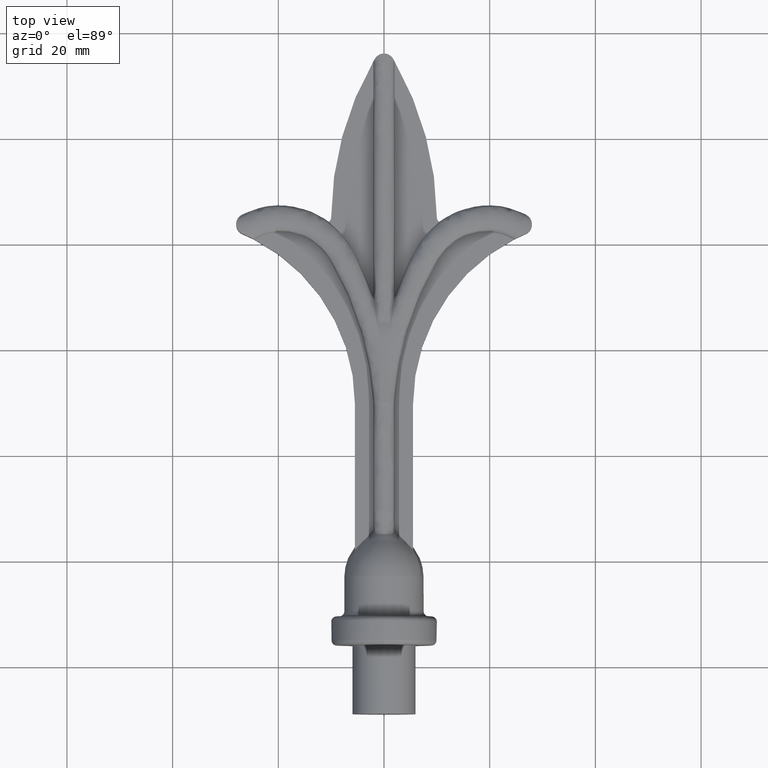
[diagram: clean part render]
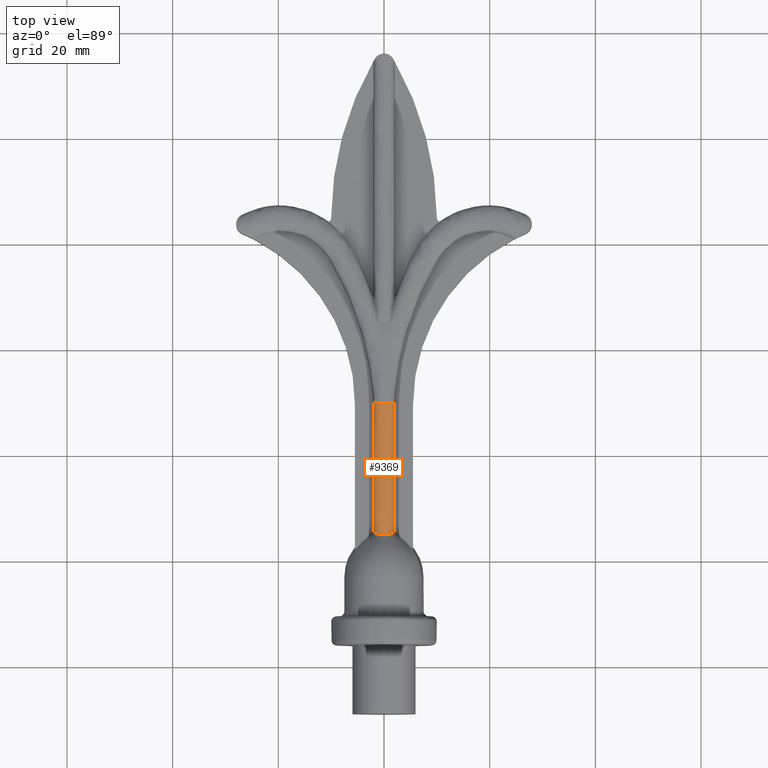
[diagram: same view with one face highlighted and labeled with its STEP entity id]
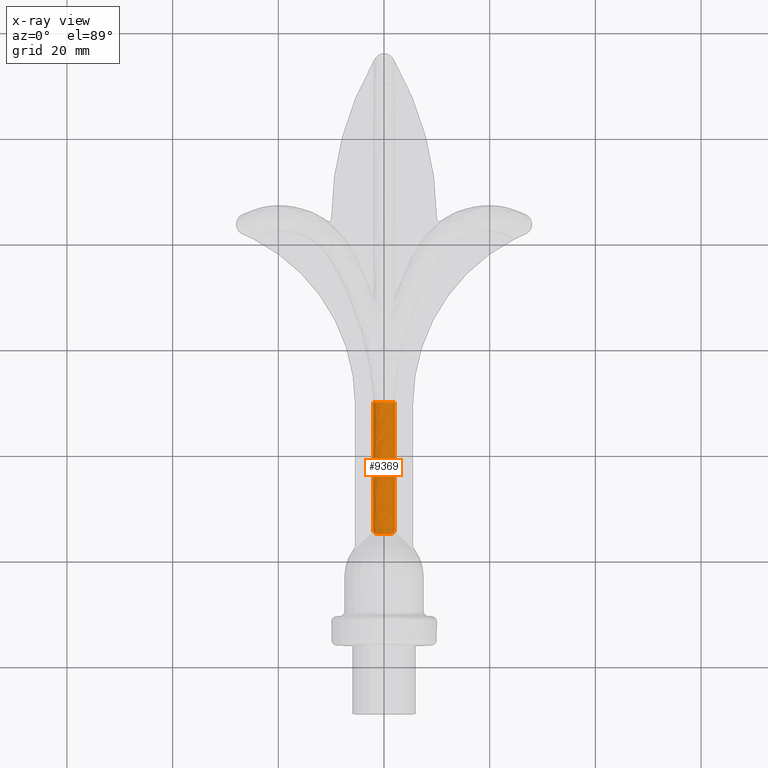
[diagram: x-ray of the same camera — body ghosted, the highlighted face saturated]
A machine part, top view. The second image highlights one B-rep face of the part: STEP entity #9369.
The next image is the same camera in x-ray: the body ghosted, the highlighted face saturated — about 0% of this face is hidden behind the body in this view.
In plain terms, the highlighted face is a freeform B-spline surface patch.
Its self-contained STEP definition (entity closure, byte-faithful):
#193 = CARTESIAN_POINT ( 'NONE',  ( 1.822275046699542647E-13, -9.999899012340767612, 3.500002856754159009 ) ) ;
#248 = ORIENTED_EDGE ( 'NONE', *, *, #11975, .T. ) ;
#285 = FACE_OUTER_BOUND ( 'NONE', #13315, .T. ) ;
#344 = CARTESIAN_POINT ( 'NONE',  ( -1.999999999999999556, -34.15704797630281320, 2.250000000000000000 ) ) ;
#423 = EDGE_CURVE ( 'NONE', #11730, #13810, #4653, .T. ) ;
#524 = CARTESIAN_POINT ( 'NONE',  ( 1.800204009571113373, -34.72395054335985520, 2.802030911952340553 ) ) ;
#578 = CARTESIAN_POINT ( 'NONE',  ( 1.999999999999999556, -34.15704797630281320, 2.250000000000000000 ) ) ;
#835 = CARTESIAN_POINT ( 'NONE',  ( 1.822275046699542647E-13, -9.999899012340767612, 3.500002856754159009 ) ) ;
#882 = CARTESIAN_POINT ( 'NONE',  ( -1.999999999999999556, -34.15704797630281320, 2.250000000000000000 ) ) ;
#1039 = EDGE_CURVE ( 'NONE', #6951, #13810, #12157, .T. ) ;
#1439 = DIRECTION ( 'NONE',  ( 0.000000000000000000, -1.000000000000000000, 0.000000000000000000 ) ) ;
#1690 = CARTESIAN_POINT ( 'NONE',  ( 0.2383922027009829636, -34.99203929584172101, 3.500026450219030583 ) ) ;
#2001 = ORIENTED_EDGE ( 'NONE', *, *, #6359, .T. ) ;
#2407 = B_SPLINE_CURVE_WITH_KNOTS ( 'NONE', 3,
 ( #13151, #10972, #10930, #8848, #4128, #835 ),
 .UNSPECIFIED., .F., .F.,
 ( 4, 2, 4 ),
 ( 0.5843256122038831268, 0.7500000000003346212, 0.7539963090438811522 ),
 .UNSPECIFIED. ) ;
#2789 = CARTESIAN_POINT ( 'NONE',  ( -1.999999999999999556, -34.25559273147027994, 2.318117221158890295 ) ) ;
#2796 = ORIENTED_EDGE ( 'NONE', *, *, #13851, .F. ) ;
#2842 = CARTESIAN_POINT ( 'NONE',  ( 1.945511999955380711, -34.51912947970340184, 2.550902958568547874 ) ) ;
#2851 = CARTESIAN_POINT ( 'NONE',  ( -2.000000000000019540, -35.14198807904882216, 4.750000000000018652 ) ) ;
#2891 = CARTESIAN_POINT ( 'NONE',  ( -1.464981236686137223, -34.88695421528194629, 3.105308358332348639 ) ) ;
#3067 = VECTOR ( 'NONE', #1439, 1000.000000000000000 ) ;
#3335 = CARTESIAN_POINT ( 'NONE',  ( 1.384750386415574130, -10.00000000000000000, 3.264617898375323790 ) ) ;
#3751 =( BOUNDED_CURVE ( )  B_SPLINE_CURVE ( 3, ( #10824, #5024, #3937, #5155 ),
 .UNSPECIFIED., .F., .F. ) 
 B_SPLINE_CURVE_WITH_KNOTS ( ( 4, 4 ),
 ( 0.000000000000000000, 0.5086059046726595367 ),
 .UNSPECIFIED. ) 
 CURVE ( )  GEOMETRIC_REPRESENTATION_ITEM ( )  RATIONAL_B_SPLINE_CURVE ( ( 1.000000000000000000, 0.9785592584434594787, 0.9785592584434594787, 1.000000000000000000 ) ) 
 REPRESENTATION_ITEM ( '' )  );
#3860 = CARTESIAN_POINT ( 'NONE',  ( 1.999999999999999556, -34.15704797630281320, 2.250000000000000000 ) ) ;
#3902 = EDGE_CURVE ( 'NONE', #9479, #8648, #8520, .T. ) ;
#3937 = CARTESIAN_POINT ( 'NONE',  ( 1.913767255991325911, -10.00000000000000178, 2.671581419846952965 ) ) ;
#4128 = CARTESIAN_POINT ( 'NONE',  ( -0.01754195312329816930, -9.999999999999998224, 3.500002810380073992 ) ) ;
#4403 = CARTESIAN_POINT ( 'NONE',  ( 0.7435887981399322832, -10.00000000000000000, 3.499999999999999556 ) ) ;
#4653 = LINE ( 'NONE', #5515, #5016 ) ;
#4846 = ORIENTED_EDGE ( 'NONE', *, *, #3902, .T. ) ;
#5016 = VECTOR ( 'NONE', #14348, 1000.000000000000000 ) ;
#5024 = CARTESIAN_POINT ( 'NONE',  ( 2.000000000000005773, -10.00000000000000178, 2.464235739769912392 ) ) ;
#5155 = CARTESIAN_POINT ( 'NONE',  ( 1.746894550110650091, -9.999999999999998224, 2.858741228396034728 ) ) ;
#5158 = CARTESIAN_POINT ( 'NONE',  ( 2.000000000000020872, -9.999999999999994671, 4.750000000000017764 ) ) ;
#5384 = CARTESIAN_POINT ( 'NONE',  ( 1.746894550110650091, -9.999999999999998224, 2.858741228396034728 ) ) ;
#5496 = CARTESIAN_POINT ( 'NONE',  ( -1.746894550110650091, -9.999999999999998224, 2.858741228396034728 ) ) ;
#5515 = CARTESIAN_POINT ( 'NONE',  ( 1.999999999999999556, 64.00000000000000000, 2.250000000000000000 ) ) ;
#5531 = CARTESIAN_POINT ( 'NONE',  ( -2.000006093207118418, -9.999999999999998224, 2.250000000000134559 ) ) ;
#5652 = CARTESIAN_POINT ( 'NONE',  ( 2.000006093207118418, -9.999999999999998224, 2.250000000000134559 ) ) ;
#5697 = CARTESIAN_POINT ( 'NONE',  ( -1.746894550110650091, -9.999999999999998224, 2.858741228396034728 ) ) ;
#6092 = CARTESIAN_POINT ( 'NONE',  ( -1.560769452165191362, -34.85766268105309251, 3.036938665854563180 ) ) ;
#6144 = CARTESIAN_POINT ( 'NONE',  ( -1.799069415068647926, -34.72495107449014995, 2.803494113027850787 ) ) ;
#6191 = CARTESIAN_POINT ( 'NONE',  ( 0.4766521977810068145, -34.98944857593474467, 3.473829844479841888 ) ) ;
#6235 = CARTESIAN_POINT ( 'NONE',  ( 2.000000000000000000, -34.25527071622161657, 2.317894634133601528 ) ) ;
#6296 = CARTESIAN_POINT ( 'NONE',  ( 1.999999999999999556, -35.14198807904882216, 2.249999999999993339 ) ) ;
#6359 = EDGE_CURVE ( 'NONE', #6958, #6951, #12355, .T. ) ;
#6569 = CARTESIAN_POINT ( 'NONE',  ( 1.746894550110650091, -9.999999999999998224, 2.858741228396034728 ) ) ;
#6769 = ORIENTED_EDGE ( 'NONE', *, *, #423, .F. ) ;
#6951 = VERTEX_POINT ( 'NONE', #882 ) ;
#6958 = VERTEX_POINT ( 'NONE', #5531 ) ;
#7186 = CARTESIAN_POINT ( 'NONE',  ( -1.907775273121314896, -34.59624959401082833, 2.635941899966480317 ) ) ;
#7274 = CARTESIAN_POINT ( 'NONE',  ( 0.9403280221167613639, -34.96907708864642927, 3.364051730025904519 ) ) ;
#7326 = CARTESIAN_POINT ( 'NONE',  ( 1.564882177343990266, -34.85609638860634618, 3.033668714951715639 ) ) ;
#7371 = CARTESIAN_POINT ( 'NONE',  ( -1.945731064068798144, -34.51842330075704979, 2.550222410366617343 ) ) ;
#7429 = CARTESIAN_POINT ( 'NONE',  ( -2.000000000000019540, -9.999999999999994671, 4.750000000000018652 ) ) ;
#7449 =( BOUNDED_SURFACE ( )  B_SPLINE_SURFACE ( 3, 1, ( 
 ( #13052, #6296 ),
 ( #5158, #13008 ),
 ( #7429, #2851 ),
 ( #10736, #8602 ) ),
 .UNSPECIFIED., .F., .F., .T. ) 
 B_SPLINE_SURFACE_WITH_KNOTS ( ( 4, 4 ),
 ( 2, 2 ),
 ( 0.000000000000000000, 1.000000000000000000 ),
 ( 0.000000000000000000, 1.000000000000000000 ),
 .UNSPECIFIED. ) 
 GEOMETRIC_REPRESENTATION_ITEM ( )  RATIONAL_B_SPLINE_SURFACE ( (
 ( 1.000000000000000000, 1.000000000000000000),
 ( 0.3333333333333299286, 0.3333333333333299286),
 ( 0.3333333333333299286, 0.3333333333333299286),
 ( 1.000000000000000000, 1.000000000000000000) ) ) 
 REPRESENTATION_ITEM ( '' )  SURFACE ( )  );
#7471 = ORIENTED_EDGE ( 'NONE', *, *, #8325, .F. ) ;
#8298 = CARTESIAN_POINT ( 'NONE',  ( -1.163062110082933476, -34.95224762642521910, 3.281356637454506675 ) ) ;
#8325 = EDGE_CURVE ( 'NONE', #11731, #8648, #2407, .T. ) ;
#8520 =( BOUNDED_CURVE ( )  B_SPLINE_CURVE ( 3, ( #6569, #3335, #4403, #13347 ),
 .UNSPECIFIED., .F., .F. ) 
 B_SPLINE_CURVE_WITH_KNOTS ( ( 4, 4 ),
 ( 0.5086059046726595367, 1.570796326794896558 ),
 .UNSPECIFIED. ) 
 CURVE ( )  GEOMETRIC_REPRESENTATION_ITEM ( )  RATIONAL_B_SPLINE_CURVE ( ( 1.000000000000000000, 0.9081685916369324207, 0.9081685916369324207, 1.000000000000000000 ) ) 
 REPRESENTATION_ITEM ( '' )  );
#8602 = CARTESIAN_POINT ( 'NONE',  ( -2.000000000000000444, -35.14198807904882216, 2.249999999999993783 ) ) ;
#8648 = VERTEX_POINT ( 'NONE', #193 ) ;
#8848 = CARTESIAN_POINT ( 'NONE',  ( -0.03513379100271251526, -9.999999999999998224, 3.499855767018538621 ) ) ;
#9369 = ADVANCED_FACE ( 'NONE', ( #285 ), #7449, .T. ) ;
#9479 = VERTEX_POINT ( 'NONE', #5384 ) ;
#9536 = CARTESIAN_POINT ( 'NONE',  ( -1.727156478971724418, -34.77729116556376709, 2.886846873559997917 ) ) ;
#9587 = CARTESIAN_POINT ( 'NONE',  ( 1.908439774154874868, -34.59511436394836892, 2.634627311265206551 ) ) ;
#9635 = CARTESIAN_POINT ( 'NONE',  ( 1.469958461775456415, -34.88562641794169394, 3.102046499920378508 ) ) ;
#9917 = CARTESIAN_POINT ( 'NONE',  ( -2.000166760083811557, -10.00000000000000178, 2.470380322470160817 ) ) ;
#10013 = CARTESIAN_POINT ( 'NONE',  ( -2.000006093207118418, -9.999999999999998224, 2.250000000000134559 ) ) ;
#10674 = CARTESIAN_POINT ( 'NONE',  ( -1.991291725484646280, -34.34805586792848686, 2.391653718756293401 ) ) ;
#10722 = CARTESIAN_POINT ( 'NONE',  ( 1.991384617648392696, -34.34782118006087615, 2.391412072643284148 ) ) ;
#10736 = CARTESIAN_POINT ( 'NONE',  ( -2.000000000000000444, -9.999999999999994671, 2.249999999999993783 ) ) ;
#10770 = CARTESIAN_POINT ( 'NONE',  ( 1.729451187251316524, -34.77574576901506731, 2.884319472987618038 ) ) ;
#10824 = CARTESIAN_POINT ( 'NONE',  ( 2.000006093207118418, -9.999999999999998224, 2.250000000000134559 ) ) ;
#10930 = CARTESIAN_POINT ( 'NONE',  ( -0.7840233868617025870, -10.00000000000000000, 3.487501192203009026 ) ) ;
#10972 = CARTESIAN_POINT ( 'NONE',  ( -1.413723400870509961, -10.00000000000000000, 3.231046474441270799 ) ) ;
#11730 = VERTEX_POINT ( 'NONE', #5652 ) ;
#11731 = VERTEX_POINT ( 'NONE', #5697 ) ;
#11745 = CARTESIAN_POINT ( 'NONE',  ( -0.9360407856882362321, -34.96931625517643027, 3.365243723249327967 ) ) ;
#11975 = EDGE_CURVE ( 'NONE', #11730, #9479, #3751, .T. ) ;
#12157 = B_SPLINE_CURVE_WITH_KNOTS ( 'NONE', 3,
 ( #344, #2789, #10674, #7371, #7186, #6144, #9536, #6092, #2891, #8298, #11745, #12906, #14025, #1690, #6191, #7274, #14068, #9635, #7326, #10770, #524, #9587, #2842, #10722, #6235, #578 ),
 .UNSPECIFIED., .F., .F.,
 ( 4, 2, 2, 2, 2, 2, 2, 2, 2, 2, 2, 2, 4 ),
 ( -0.002859801383876333855, -0.002502370473421065659, -0.002144939562965797464, -0.001787508652510528834, -0.001430077742055260205, -0.0007152159211447238138, -3.541002341869887993E-07, 0.0007145077206763489688, 0.001429369541586886228, 0.001786800452042155291, 0.002144231362497423486, 0.002501662272952692549, 0.002859093183407960745 ),
 .UNSPECIFIED. ) ;
#12355 = LINE ( 'NONE', #12704, #3067 ) ;
#12704 = CARTESIAN_POINT ( 'NONE',  ( -1.999999999999999556, 64.00000000000000000, 2.250000000000000000 ) ) ;
#12820 = ORIENTED_EDGE ( 'NONE', *, *, #1039, .T. ) ;
#12841 = B_SPLINE_CURVE_WITH_KNOTS ( 'NONE', 3,
 ( #10013, #9917, #14372, #5496 ),
 .UNSPECIFIED., .F., .F.,
 ( 4, 4 ),
 ( 0.5039963082231189162, 0.5843256122038830158 ),
 .UNSPECIFIED. ) ;
#12906 = CARTESIAN_POINT ( 'NONE',  ( -0.4768846267975648812, -34.98938710540635100, 3.473596281929505647 ) ) ;
#13008 = CARTESIAN_POINT ( 'NONE',  ( 2.000000000000020872, -35.14198807904882216, 4.750000000000017764 ) ) ;
#13052 = CARTESIAN_POINT ( 'NONE',  ( 1.999999999999999556, -9.999999999999994671, 2.249999999999993339 ) ) ;
#13151 = CARTESIAN_POINT ( 'NONE',  ( -1.746894550110650091, -9.999999999999998224, 2.858741228396034728 ) ) ;
#13315 = EDGE_LOOP ( 'NONE', ( #4846, #7471, #2796, #2001, #12820, #6769, #248 ) ) ;
#13347 = CARTESIAN_POINT ( 'NONE',  ( 1.822275046699542647E-13, -9.999899012340767612, 3.500002856754159009 ) ) ;
#13810 = VERTEX_POINT ( 'NONE', #3860 ) ;
#13851 = EDGE_CURVE ( 'NONE', #6958, #11731, #12841, .T. ) ;
#14025 = CARTESIAN_POINT ( 'NONE',  ( -0.2391017709060675178, -34.99203242678575521, 3.499973510446042546 ) ) ;
#14068 = CARTESIAN_POINT ( 'NONE',  ( 1.166100923499271635, -34.95207752735459650, 3.280281460138147143 ) ) ;
#14348 = DIRECTION ( 'NONE',  ( 0.000000000000000000, -1.000000000000000000, 0.000000000000000000 ) ) ;
#14372 = CARTESIAN_POINT ( 'NONE',  ( -1.908368915162656831, -10.00000000000000178, 2.678162620277510175 ) ) ;